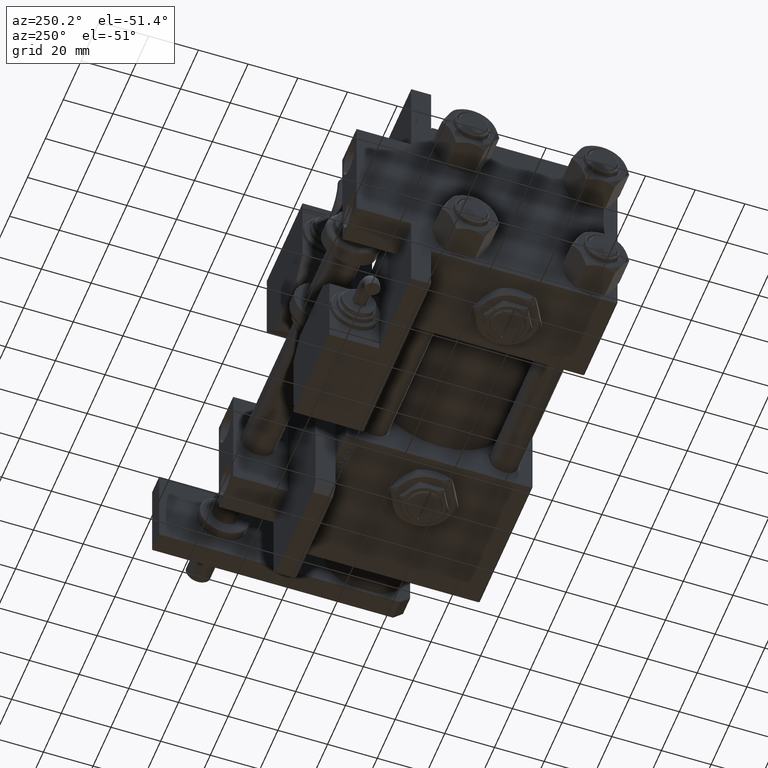
[diagram: clean part render]
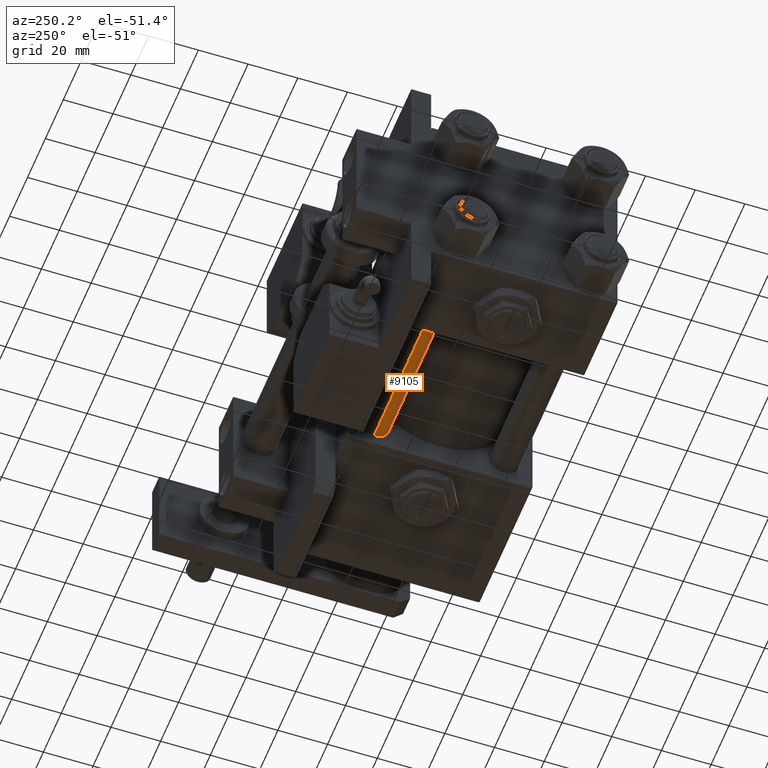
[diagram: same view with one face highlighted and labeled with its STEP entity id]
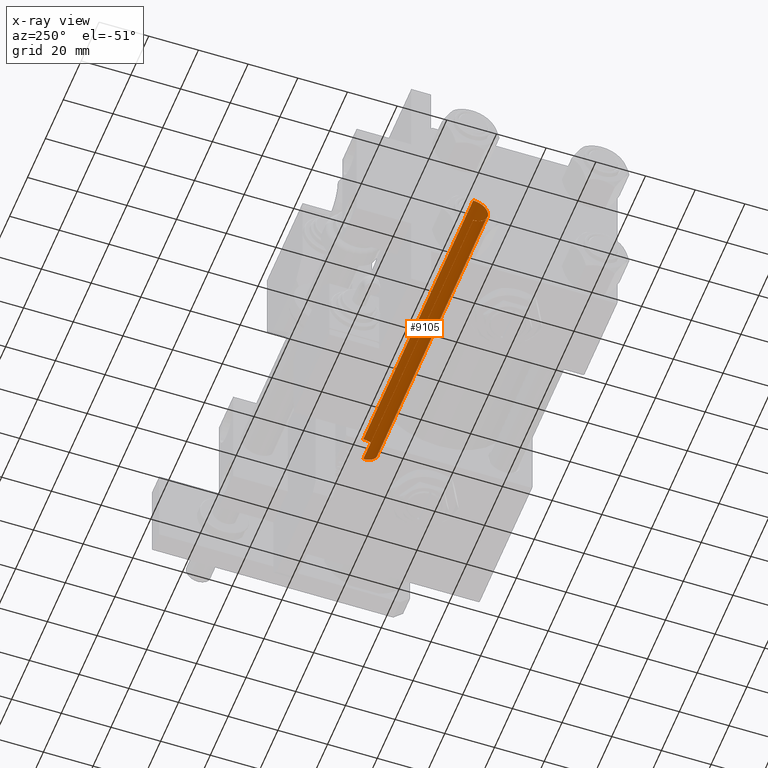
[diagram: x-ray of the same camera — body ghosted, the highlighted face saturated]
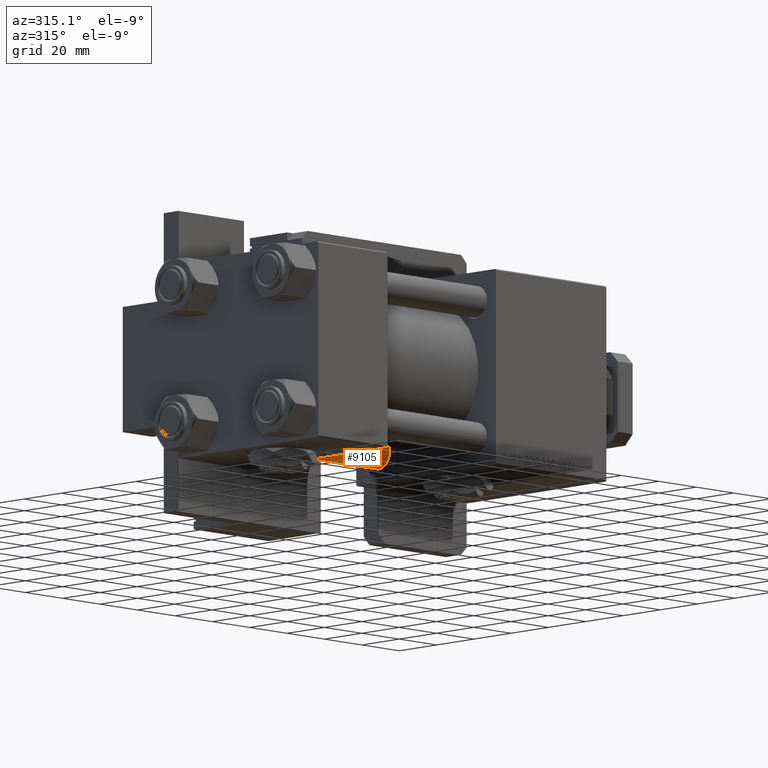
[diagram: same view with one face highlighted and labeled with its STEP entity id]
A machine part, auxiliary view. The second image highlights one B-rep face of the part: STEP entity #9105.
The next image is the same camera in x-ray: the body ghosted, the highlighted face saturated — about 0% of this face is hidden behind the body in this view.
A second angle (auxiliary view) of the same face is appended — the face is thin or edge-on in the first view.
In plain terms, the highlighted cylindrical surface (edge-blend (fillet) strip) has radius 6 mm, axis along (1, -0, -0).
Its self-contained STEP definition (entity closure, byte-faithful):
#2265 = ORIENTED_EDGE ( 'NONE', *, *, #43710, .T. ) ;
#2662 = CARTESIAN_POINT ( 'NONE',  ( 6.000000000000000888, 7.347880794884120722E-16, 124.0000000000000000 ) ) ;
#4936 = DIRECTION ( 'NONE',  ( -0.000000000000000000, -0.000000000000000000, 1.000000000000000000 ) ) ;
#6089 = AXIS2_PLACEMENT_3D ( 'NONE', #45089, #4936, #22796 ) ;
#6264 = CYLINDRICAL_SURFACE ( 'NONE', #40222, 6.000000000000000888 ) ;
#7944 = CARTESIAN_POINT ( 'NONE',  ( -6.000000000000000888, 0.000000000000000000, 0.4999999999999865663 ) ) ;
#9105 = ADVANCED_FACE ( 'NONE', ( #32059 ), #6264, .T. ) ;
#10985 = LINE ( 'NONE', #56117, #43336 ) ;
#13355 = VECTOR ( 'NONE', #24332, 1000.000000000000000 ) ;
#14761 = CARTESIAN_POINT ( 'NONE',  ( 0.000000000000000000, 0.000000000000000000, 124.0000000000000000 ) ) ;
#15284 = CIRCLE ( 'NONE', #22761, 6.000000000000000888 ) ;
#15903 = CARTESIAN_POINT ( 'NONE',  ( 6.000000000000000888, 7.347880794884120722E-16, 123.5000000000000426 ) ) ;
#17159 = EDGE_CURVE ( 'NONE', #54245, #43991, #38386, .T. ) ;
#19236 = EDGE_CURVE ( 'NONE', #54245, #48039, #15284, .T. ) ;
#21602 = DIRECTION ( 'NONE',  ( 1.000000000000000000, 0.000000000000000000, 0.000000000000000000 ) ) ;
#22335 = EDGE_CURVE ( 'NONE', #39280, #43991, #56626, .T. ) ;
#22761 = AXIS2_PLACEMENT_3D ( 'NONE', #25708, #43883, #21602 ) ;
#22796 = DIRECTION ( 'NONE',  ( 1.000000000000000000, 0.000000000000000000, 0.000000000000000000 ) ) ;
#22942 = ORIENTED_EDGE ( 'NONE', *, *, #17159, .F. ) ;
#23954 = ORIENTED_EDGE ( 'NONE', *, *, #19236, .T. ) ;
#24332 = DIRECTION ( 'NONE',  ( -0.000000000000000000, -0.000000000000000000, -1.000000000000000000 ) ) ;
#25708 = CARTESIAN_POINT ( 'NONE',  ( 0.000000000000000000, 0.000000000000000000, 123.5000000000000426 ) ) ;
#28539 = DIRECTION ( 'NONE',  ( -1.000000000000000000, 0.000000000000000000, 0.000000000000000000 ) ) ;
#32059 = FACE_OUTER_BOUND ( 'NONE', #50387, .T. ) ;
#38386 = LINE ( 'NONE', #2662, #13355 ) ;
#39280 = VERTEX_POINT ( 'NONE', #7944 ) ;
#39937 = CARTESIAN_POINT ( 'NONE',  ( 6.000000000000000888, 7.347880794884120722E-16, 0.4999999999999865663 ) ) ;
#40222 = AXIS2_PLACEMENT_3D ( 'NONE', #14761, #49948, #28539 ) ;
#43336 = VECTOR ( 'NONE', #46167, 1000.000000000000000 ) ;
#43710 = EDGE_CURVE ( 'NONE', #48039, #39280, #10985, .T. ) ;
#43883 = DIRECTION ( 'NONE',  ( 0.000000000000000000, 0.000000000000000000, -1.000000000000000000 ) ) ;
#43991 = VERTEX_POINT ( 'NONE', #39937 ) ;
#45089 = CARTESIAN_POINT ( 'NONE',  ( 0.000000000000000000, 0.000000000000000000, 0.4999999999999865663 ) ) ;
#46057 = ORIENTED_EDGE ( 'NONE', *, *, #22335, .T. ) ;
#46167 = DIRECTION ( 'NONE',  ( -0.000000000000000000, -0.000000000000000000, -1.000000000000000000 ) ) ;
#46447 = CARTESIAN_POINT ( 'NONE',  ( -6.000000000000000888, 0.000000000000000000, 123.5000000000000426 ) ) ;
#48039 = VERTEX_POINT ( 'NONE', #46447 ) ;
#49948 = DIRECTION ( 'NONE',  ( -0.000000000000000000, -0.000000000000000000, -1.000000000000000000 ) ) ;
#50387 = EDGE_LOOP ( 'NONE', ( #22942, #23954, #2265, #46057 ) ) ;
#54245 = VERTEX_POINT ( 'NONE', #15903 ) ;
#56117 = CARTESIAN_POINT ( 'NONE',  ( -6.000000000000000888, 0.000000000000000000, 124.0000000000000000 ) ) ;
#56626 = CIRCLE ( 'NONE', #6089, 6.000000000000000888 ) ;